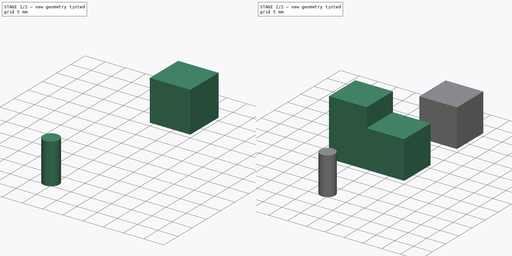
[diagram: build sequence overview — one tinted view per stage of 2, left to right]
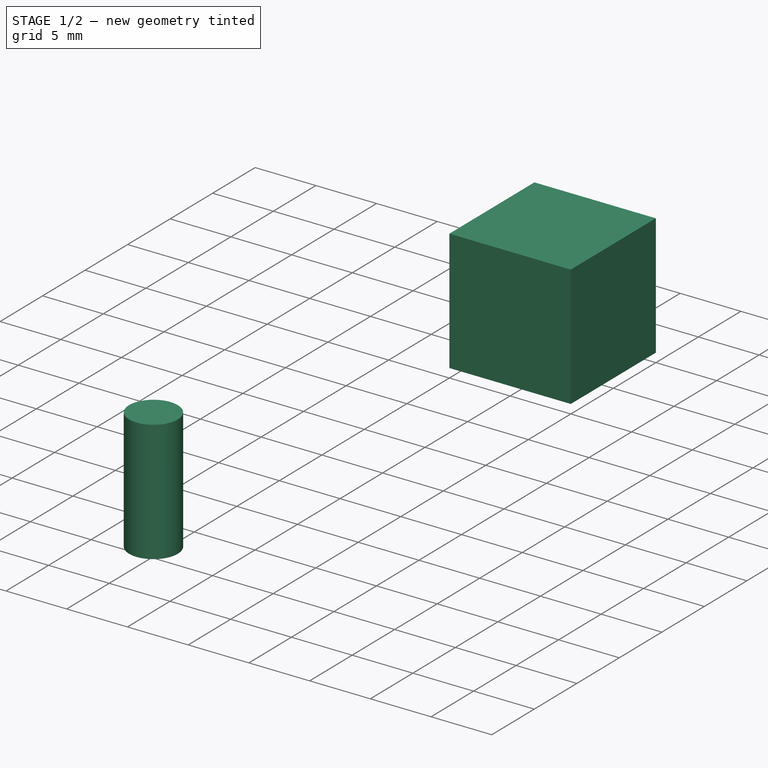
[diagram: stage 1 of 2 — iso view after this stage's code; geometry added in this stage tinted green]
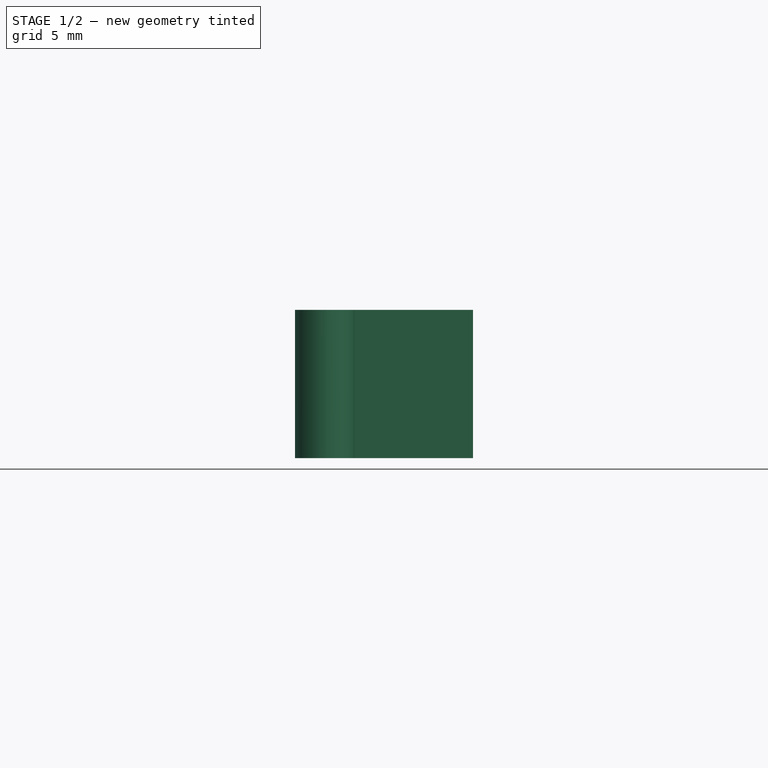
[diagram: stage 1 of 2 — front view after this stage's code; geometry added in this stage tinted green]
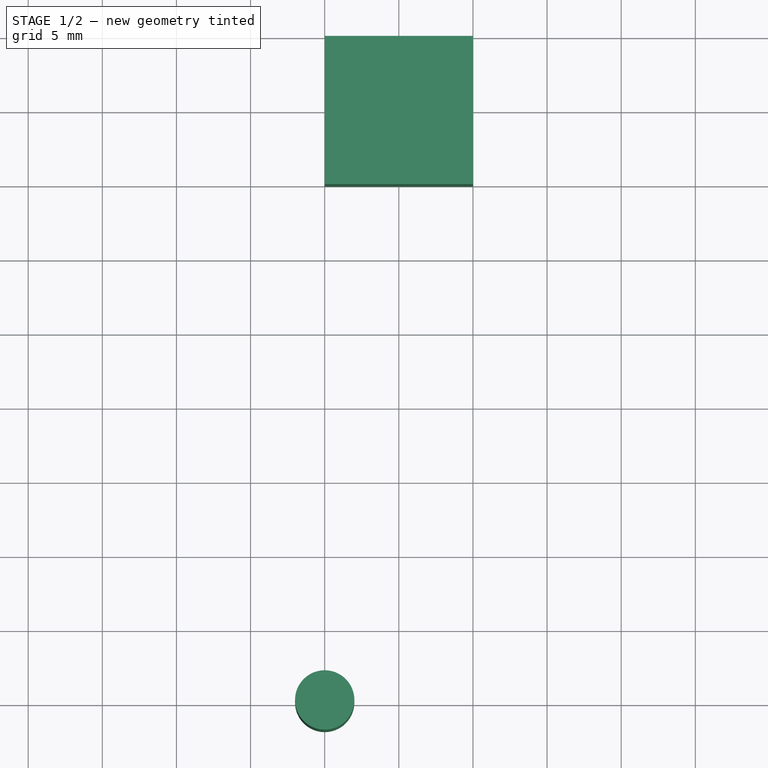
[diagram: stage 1 of 2 — top view after this stage's code; geometry added in this stage tinted green]
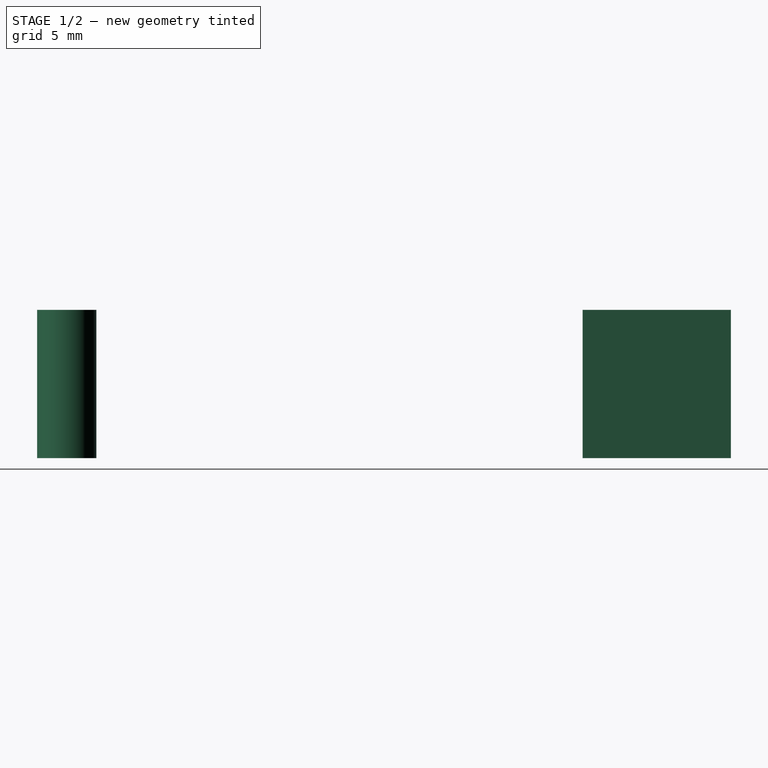
[diagram: stage 1 of 2 — right view after this stage's code; geometry added in this stage tinted green]
FCSTD DOCUMENT  (FreeCAD 2022.709R26244 +5001 (Git))
Label: Test
License: All rights reserved
LicenseURL: http://en.wikipedia.org/wiki/All_rights_reserved
objects: App::DocumentObjectGroup×3, Part::Box×2, Sketcher::SketchObject×2, PartDesign::CoordinateSystem×2, App::Link×2, Spreadsheet::Sheet×1, PartDesign::Pad×1, App::FeaturePython×1, PartDesign::Body×1, App::Part×1, Part::Cylinder×1
note: 11 computed .brp shape members not serialized (recipe doc carries the construction recipe); baked Part::Feature solids carry a one-line shape summary decoded from their .brp

FEATURE [PartDesign::CoordinateSystem] LCS_Origin
  AttacherType = Attacher::AttachEngine3D
  AttachmentSupport = -> [X_Axis001]
  MapMode = 2
  Support = -> [X_Axis001]
  TreeRank = 18
FEATURE [App::DocumentObjectGroup] Constraints
  ClaimAllChildren = true
  ExportMode = 1
  TreeRank = 25
  _GroupVersion = 1
FEATURE [App::FeaturePython] Variables  # WARN: FeaturePython — macro-defined, semantics opaque (R4)
  TreeRank = 26
  Type = App::PropertyContainer
FEATURE [App::DocumentObjectGroup] Configurations
  ClaimAllChildren = true
  ExportMode = 1
  TreeRank = 27
  _GroupVersion = 1
FEATURE [App::Link] Body001  label="Body001(Body)"
  AssemblyType = Part::Link
  AttachedBy = #LCS_1
  AttachedTo = Parent Assembly#LCS_Origin
  AutoLinkLabel = true
  AutoPlacement = true
  LinkedObject = -> Body
  SolverId = Asm4EE
  SyncGroupVisibility = false
  TreeRank = 31
  _LinkVersion = 1
  expr: Placement = LCS_Origin.Placement * AttachmentOffset * LCS_1.Placement ^ (-1)
FEATURE [PartDesign::CoordinateSystem] LCS_1
  AttacherType = Attacher::AttachEngine3D
  AttachmentSupport = -> [XY_Plane]
  MapMode = 5
  Support = -> [XY_Plane]
  TreeRank = 32
FEATURE [PartDesign::Body] Body
  AutoGroupSolids = false
  ClaimAllChildren = false
  ExportMode = 0
  Group = -> [Sketch,Pad,LCS_1]
  Origin = -> Origin
  Placement = pos=(0,0,20) rot=(0,0,1;0rad)
  SingleSolid = true
  Tip = -> Pad
  TreeRank = 12
  _ExportChildren = -> [Pad,LCS_1]
  _GroupVersion = 1
  expr: Label2 = <<Export(%s)>> % .Shape.BoundBox.XLength
FEATURE [App::DocumentObjectGroup] Parts
  ClaimAllChildren = true
  ExportMode = 1
  Group = -> [Body]
  TreeRank = 28
  _GroupVersion = 1
FEATURE [App::Link] Body002  label="Body002(Body)"
  AssemblyType = Part::Link
  AttachedBy = #LCS_1
  AttachedTo = Parent Assembly#LCS_Origin
  AttachmentOffset = pos=(0,20,0) rot=(0,0,1;0rad)
  AutoLinkLabel = true
  AutoPlacement = true
  LinkPlacement = pos=(0,20,0) rot=(0,0,1;0rad)
  LinkedObject = -> Body
  Placement = pos=(0,20,0) rot=(0,0,1;0rad)
  SolverId = Asm4EE
  SyncGroupVisibility = false
  TreeRank = 33
  _LinkVersion = 1
  expr: Placement = LCS_Origin.Placement * AttachmentOffset * LCS_1.Placement ^ (-1)
FEATURE [App::Part] Model
  AssemblyType = Part::Link
  ClaimAllChildren = false
  ExportMode = 1
  Group = -> [LCS_Origin,Constraints,Variables,Configurations,Body001,Body002]
  Origin = -> Origin001
  TreeRank = 30
  Type = Assembly
  _ExportChildren = -> [LCS_Origin,Constraints,Variables,Configurations,Body001,Body002]
  _GroupVersion = 1
FEATURE [Part::Box] Box001  label="Cube001"
  AttacherType = Attacher::AttachEngine3D
  Height = 10
  Length = 10
  Placement = pos=(0,20,0) rot=(0,0,1;0rad)
  TreeRank = 34
  Width = 10
FEATURE [Part::Cylinder] Cylinder
  Angle = 360
  AttacherType = Attacher::AttachEngine3D
  FirstAngle = 0
  Height = 10
  Placement = pos=(0,-14.8,0) rot=(0,0,1;0rad)
  Radius = 2
  SecondAngle = 0
  TreeRank = 35
FEATURE [Sketcher::SketchObject] Sketch001  label="Circle"
  ArcFitTolerance = 1e-06
  AttachmentSupport = -> [XY_Plane]
  FullyConstrained = false
  MapMode = 5
  Support = -> [XY_Plane]
  TreeRank = 36
  sketch-geometry (1):
    g0: Circle CenterX=0 CenterY=0 CenterZ=0 NormalX=0 NormalY=0 NormalZ=1 AngleXU=0 Radius=25.0425
  constraints (1):
    c: Coincident(g0,g-1)
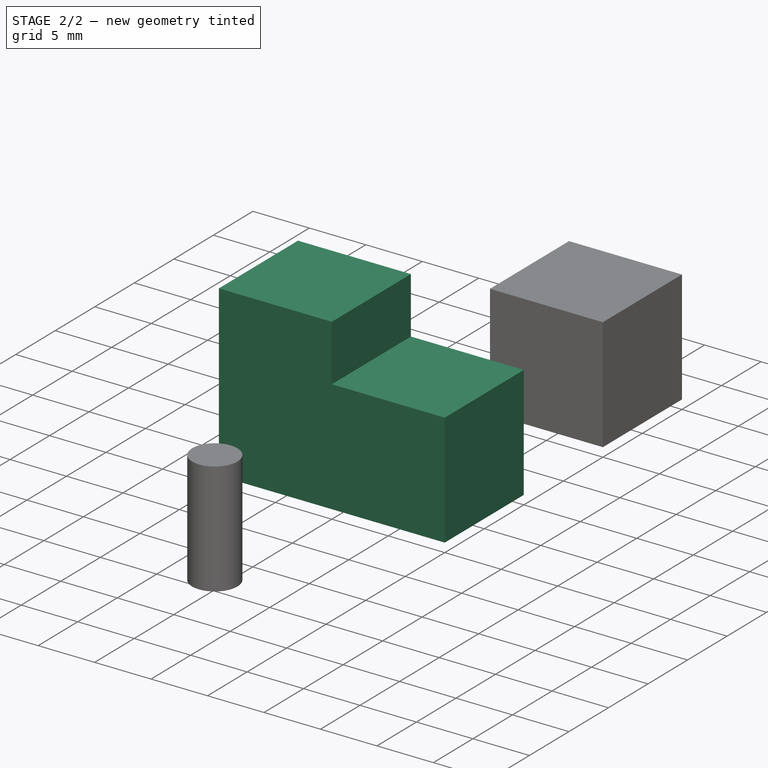
[diagram: stage 2 of 2 — iso view after this stage's code; geometry added in this stage tinted green]
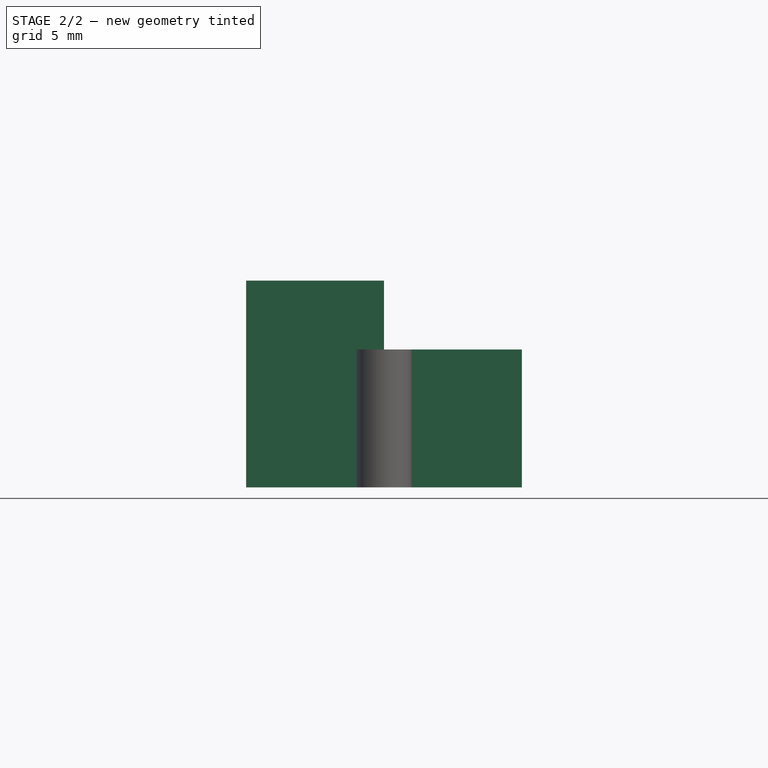
[diagram: stage 2 of 2 — front view after this stage's code; geometry added in this stage tinted green]
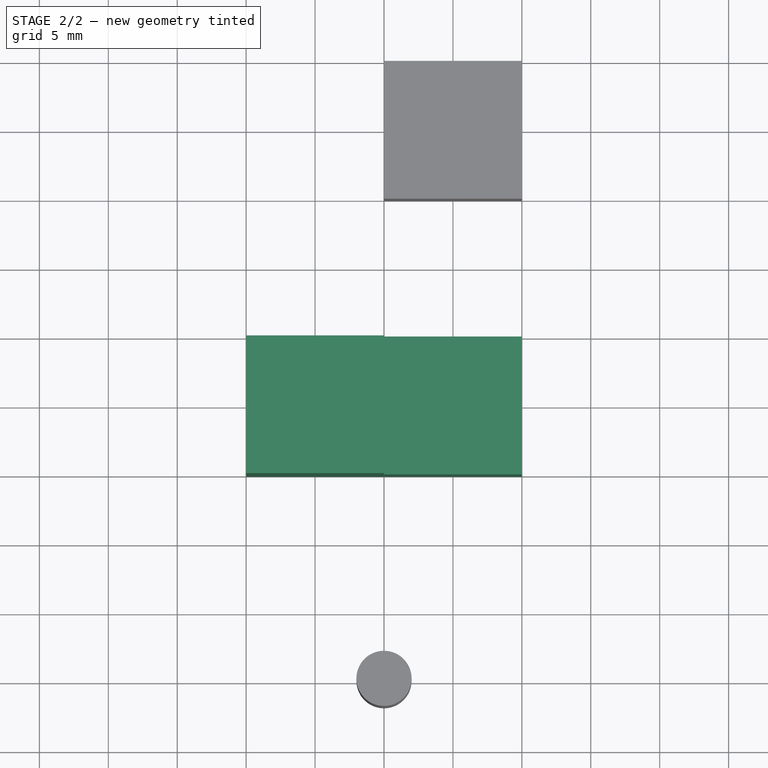
[diagram: stage 2 of 2 — top view after this stage's code; geometry added in this stage tinted green]
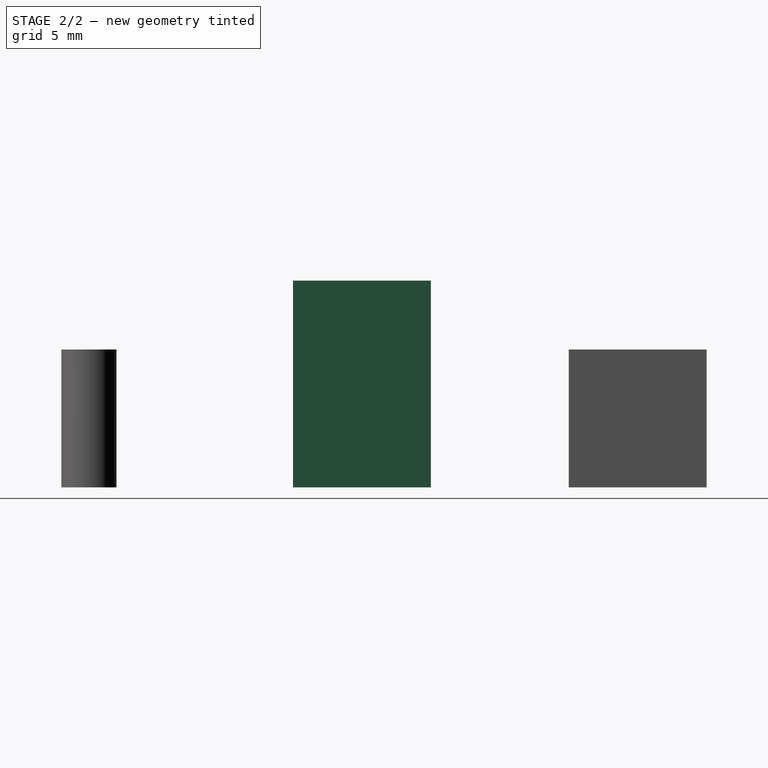
[diagram: stage 2 of 2 — right view after this stage's code; geometry added in this stage tinted green]
FEATURE [Part::Box] Box  label="Cube"
  AttacherType = Attacher::AttachEngine3D
  Height = 10
  Length = 10
  TreeRank = 1
  Width = 10
FEATURE [Spreadsheet::Sheet] Spreadsheet
  PythonMode = false
  ShowCells = 0
  TreeRank = 2
  cells = A1=some_alias; B1(some_alias)=500; A2=some_other_alias; B2(some_other_alias)=500; A3=aliases_used_in_spreadsheet; B3(aliases_used_in_spreadsheet)==some_alias + some_other_alias; B4==some_alias + 10; B5==some_other_alias + 1000
FEATURE [Sketcher::SketchObject] Sketch
  ArcFitTolerance = 0
  AttachmentSupport = -> [XY_Plane]
  FullyConstrained = true
  MapMode = 5
  Support = -> [XY_Plane]
  TreeRank = 13
  sketch-geometry (4):
    g0: LineSegment StartX=-10 StartY=10 StartZ=0 EndX=0 EndY=10 EndZ=0
    g1: LineSegment StartX=0 StartY=10 StartZ=0 EndX=0 EndY=0 EndZ=0
    g2: LineSegment StartX=0 StartY=2e-16 StartZ=0 EndX=-10 EndY=2e-16 EndZ=0
    g3: LineSegment StartX=-10 StartY=2e-16 StartZ=0 EndX=-10 EndY=10 EndZ=0
  constraints (11):
    c: Coincident(g0,g1)
    c: Coincident(g1,g2)
    c: Coincident(g2,g3)
    c: Coincident(g3,g0)
    c: Horizontal(g0)
    c: Horizontal(g2)
    c: Vertical(g1)
    c: Vertical(g3)
    c: Equal(g1,g2)
    c: Coincident(g1,g-1)
    c: DistanceX(g0,g0) = 10
FEATURE [PartDesign::Pad] Pad
  AddSubType = 0
  AlongSketchNormal = false
  CheckUpToFaceLimits = true
  ClaimChildren = false
  Direction = (0,0,1)
  Fit = 0
  FitJoin = 0
  InnerFit = 0
  InnerFitJoin = 0
  InnerTaperAngle = 0
  InnerTaperAngleRev = 0
  Length = 15
  Length2 = 100
  Linearize = true
  NewSolid = false
  Profile = -> Sketch
  Refine = true
  Suppress = false
  TreeRank = 14
  Type = 0
  _ProfileBasedVersion = 1
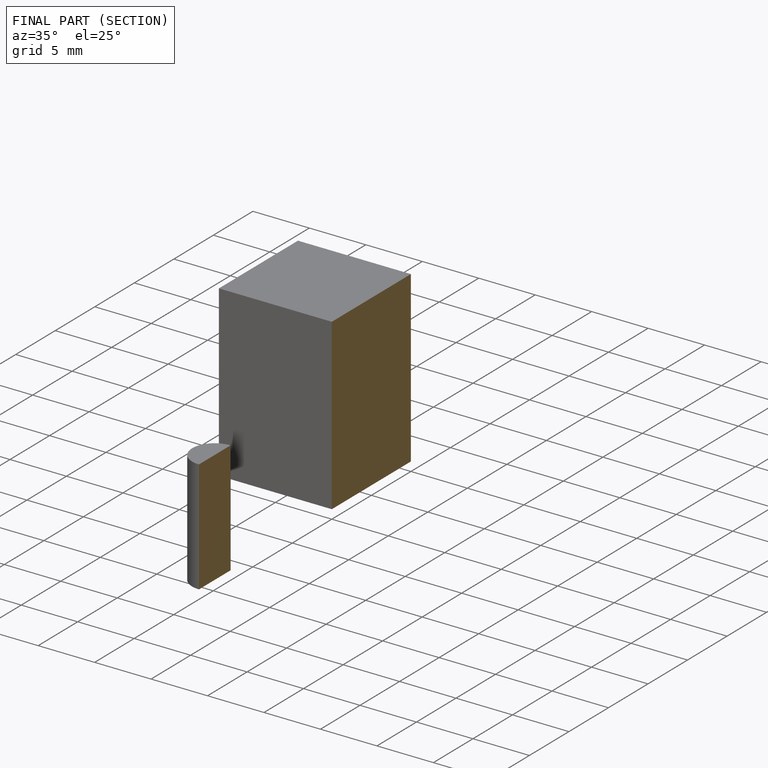
[diagram: finished part — half-section view (interior)]
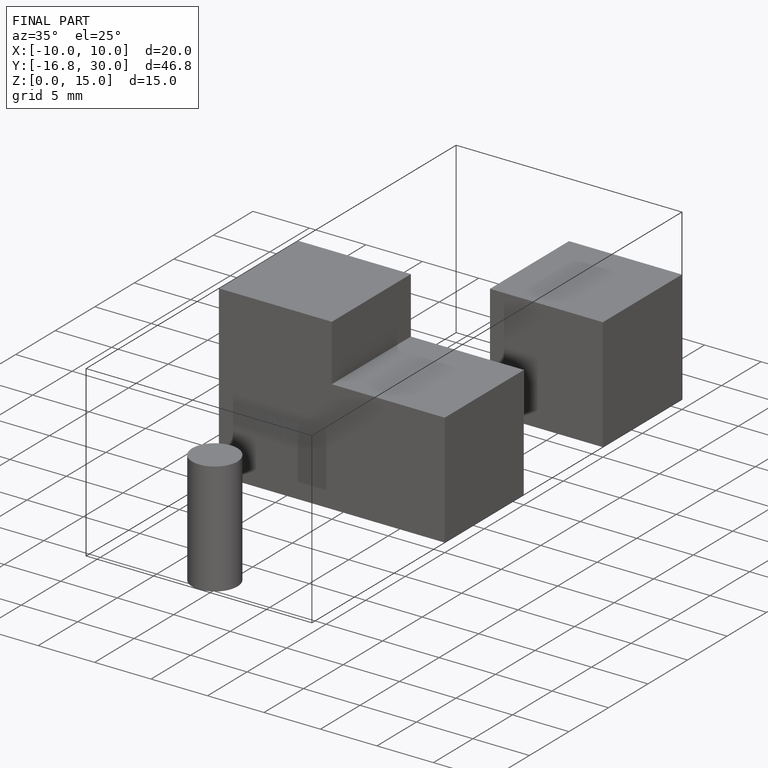
[diagram: finished part — iso view with bounding-box wireframe]
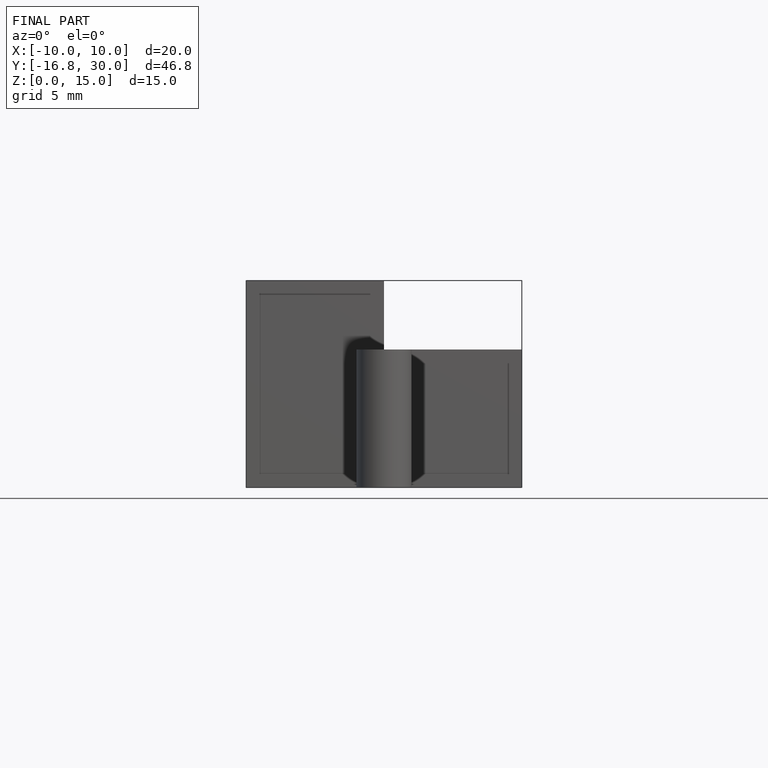
[diagram: finished part — front view with bounding-box wireframe]
